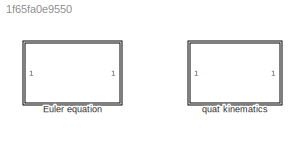
MODEL slx_1f65fa0e9550
KIND model
CONFIG AbsTol = auto
CONFIG EnableMultiTasking = on
CONFIG FixedStep = auto
CONFIG MaxStep = auto
CONFIG MinStep = auto
CONFIG RelTol = 1e-3
CONFIG SampleTimeConstraint = Unconstrained
CONFIG Solver = ode23t
CONFIG SolverName = ode23t
CONFIG StartTime = 0.0
CONFIG StopTime = Tfin
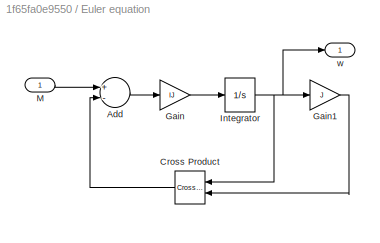
BLOCK [SubSystem] Euler equation
  AncestorBlock = lib_rotations_2014/Euler equation
  Ports = [1, 1]
  RequestExecContextInheritance = off
  Variant = off
BLOCK [Sum] Euler equation/Add
  InputSameDT = off
  Inputs = +-
  OutDataTypeStr = Inherit: Inherit via internal rule
  Ports = [2, 1]
  SaturateOnIntegerOverflow = off
BLOCK [Reference] Euler equation/Cross Product  REF=vrlib/Utilities/Cross Product
  Ports = [2, 1]
  SourceBlock = vrlib/Utilities/Cross Product
  SourceProductBaseCode = VR
  SourceProductName = Simulink 3D Animation
  SourceType = Cross Product
BLOCK [Gain] Euler equation/Gain
  Gain = IJ
  Multiplication = Matrix(K*u)
  OutDataTypeStr = Inherit: Inherit via internal rule
  ParamDataTypeStr = Inherit: Inherit via internal rule
  SaturateOnIntegerOverflow = off
BLOCK [Gain] Euler equation/Gain1
  Gain = J
  Multiplication = Matrix(K*u)
  OutDataTypeStr = Inherit: Inherit via internal rule
  ParamDataTypeStr = Inherit: Inherit via internal rule
  SaturateOnIntegerOverflow = off
BLOCK [Integrator] Euler equation/Integrator
  InitialCondition = w0
  Ports = [1, 1]
BLOCK [Inport] Euler equation/M
  IconDisplay = Port number
BLOCK [Outport] Euler equation/w
  IconDisplay = Port number
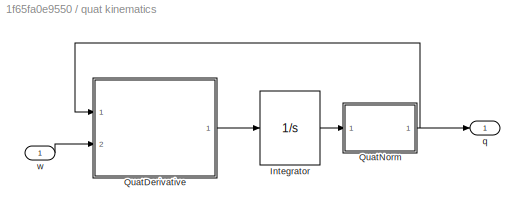
BLOCK [SubSystem] quat kinematics
  AncestorBlock = lib_rotations_2014/quat kinematics
  Ports = [1, 1]
  RequestExecContextInheritance = off
  Variant = off
BLOCK [Integrator] quat kinematics/Integrator
  InitialCondition = q0
  Ports = [1, 1]
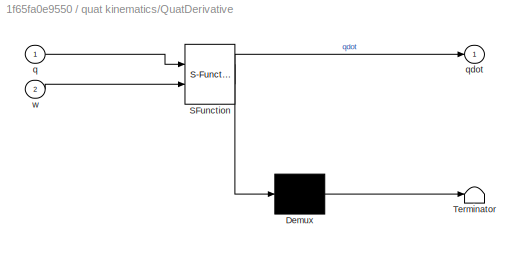
BLOCK [SubSystem] quat kinematics/QuatDerivative
  ErrorFcn = Stateflow.Translate.translate
  PermitHierarchicalResolution = ExplicitOnly
  Ports = [2, 1]
  RequestExecContextInheritance = off
  SFBlockType = MATLAB Function
  TreatAsAtomicUnit = on
  Variant = off
BLOCK [Demux] quat kinematics/QuatDerivative/ Demux 
  Outputs = 1
  Ports = [1, 1]
BLOCK [S-Function] quat kinematics/QuatDerivative/ SFunction 
  EnableBusSupport = off
  FunctionName = sf_sfun
  PortCounts = [2 2]
  Ports = [2, 2]
  SFcnIsStateOwnerBlock = off
  SFunctionDeploymentMode = off
  Tag = Stateflow S-Function att_kin_dyn 1
BLOCK [Terminator] quat kinematics/QuatDerivative/ Terminator 
BLOCK [Inport] quat kinematics/QuatDerivative/q
  IconDisplay = Port number
BLOCK [Outport] quat kinematics/QuatDerivative/qdot
  IconDisplay = Port number
BLOCK [Inport] quat kinematics/QuatDerivative/w
  IconDisplay = Port number
  Port = 2
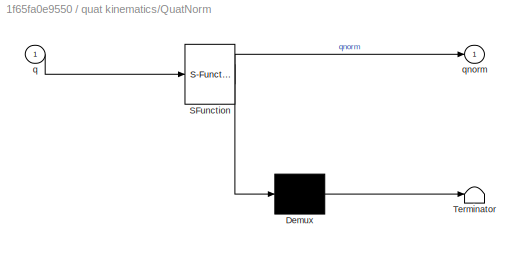
BLOCK [SubSystem] quat kinematics/QuatNorm
  ErrorFcn = Stateflow.Translate.translate
  PermitHierarchicalResolution = ExplicitOnly
  Ports = [1, 1]
  RequestExecContextInheritance = off
  SFBlockType = MATLAB Function
  TreatAsAtomicUnit = on
  Variant = off
BLOCK [Demux] quat kinematics/QuatNorm/ Demux 
  Outputs = 1
  Ports = [1, 1]
BLOCK [S-Function] quat kinematics/QuatNorm/ SFunction 
  EnableBusSupport = off
  FunctionName = sf_sfun
  PortCounts = [1 2]
  Ports = [1, 2]
  SFcnIsStateOwnerBlock = off
  SFunctionDeploymentMode = off
  Tag = Stateflow S-Function att_kin_dyn 2
BLOCK [Terminator] quat kinematics/QuatNorm/ Terminator 
BLOCK [Inport] quat kinematics/QuatNorm/q
  IconDisplay = Port number
BLOCK [Outport] quat kinematics/QuatNorm/qnorm
  IconDisplay = Port number
BLOCK [Outport] quat kinematics/q
  IconDisplay = Port number
  PortDimensions = 4
BLOCK [Inport] quat kinematics/w
  IconDisplay = Port number
  PortDimensions = 3
CHART quat kinematics/QuatDerivative states=1 transitions=1
  STATE_LABEL 'eML_blk_kernel()'
  STATE_LABEL 'SCRIPT:\nfunction qdot= QuatDerivative(q,w)\n%#codegen\nomegaq=[0; w];\nQ=[q(1) -q(2) -q(3) -q(4);\n    q(2) q(1) -q(4) q(3);\n    q(3) q(4) q(1) -q(2);\n    q(4) -q(3) q(2) q(1)];\nqdot=Q*omegaq/2;\n'
CHART quat kinematics/QuatNorm states=1 transitions=1
  STATE_LABEL 'eML_blk_kernel()'
  STATE_LABEL "SCRIPT:\nfunction qnorm = QuatNorm(q)\n%#codegen\nqnorm=zeros(4,1);\nq2=sqrt(q'*q);\nqnorm=q/q2;\n"
